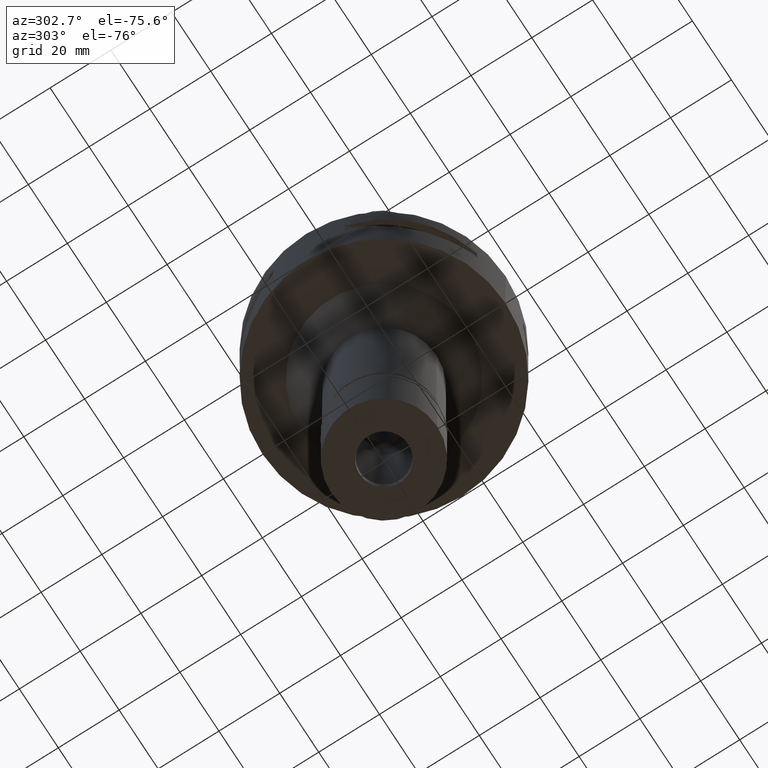
[diagram: clean part render]
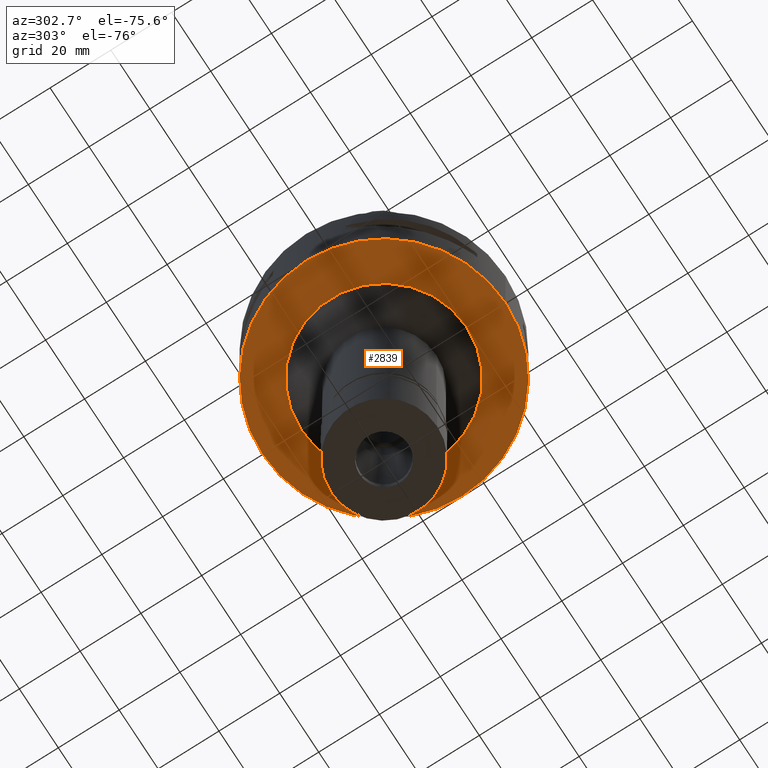
[diagram: same view with one face highlighted and labeled with its STEP entity id]
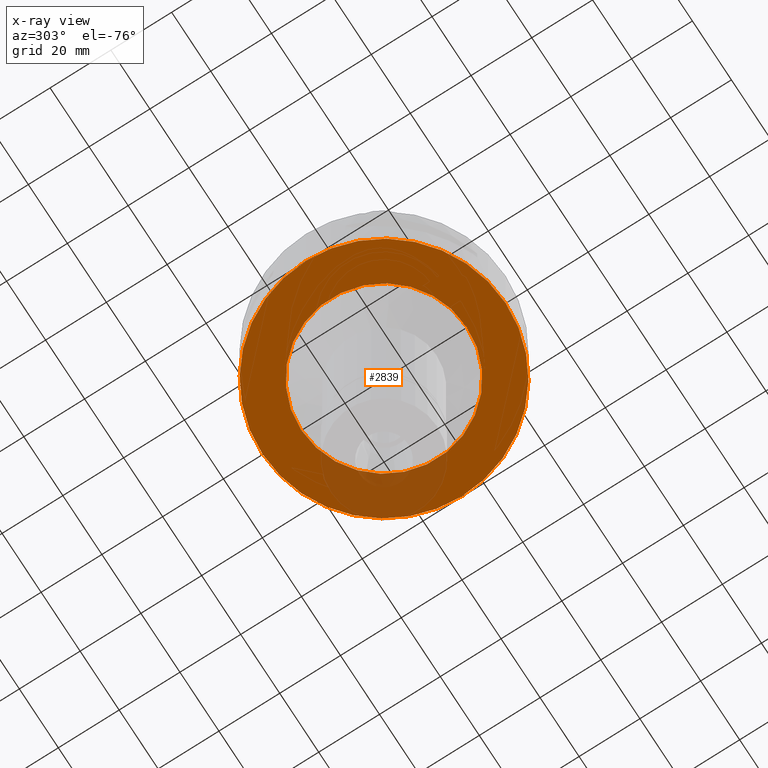
[diagram: x-ray of the same camera — body ghosted, the highlighted face saturated]
A machine part, auxiliary view. The second image highlights one B-rep face of the part: STEP entity #2839.
The next image is the same camera in x-ray: the body ghosted, the highlighted face saturated — about 15% of this face is hidden behind the body in this view.
In plain terms, the highlighted planar face has unit normal (0, 0, -1).
Its self-contained STEP definition (entity closure, byte-faithful):
#42 = VERTEX_POINT ( 'NONE', #1980 ) ;
#104 = ORIENTED_EDGE ( 'NONE', *, *, #1187, .F. ) ;
#209 = AXIS2_PLACEMENT_3D ( 'NONE', #470, #2058, #3308 ) ;
#416 = CARTESIAN_POINT ( 'NONE',  ( 0.0000000000000000000, 0.0000000000000000000, -30.00000000000000000 ) ) ;
#470 = CARTESIAN_POINT ( 'NONE',  ( 0.0000000000000000000, 1.291390049700999962E-14, -30.00000000000000000 ) ) ;
#1017 = ORIENTED_EDGE ( 'NONE', *, *, #4681, .F. ) ;
#1133 = DIRECTION ( 'NONE',  ( 0.0000000000000000000, -1.000000000000000000, 0.0000000000000000000 ) ) ;
#1187 = EDGE_CURVE ( 'NONE', #42, #3127, #3428, .T. ) ;
#1196 = AXIS2_PLACEMENT_3D ( 'NONE', #2261, #2647, #3397 ) ;
#1245 = EDGE_CURVE ( 'NONE', #1522, #3818, #1856, .T. ) ;
#1403 = CARTESIAN_POINT ( 'NONE',  ( 0.0000000000000000000, 1.291390049700999962E-14, -30.00000000000000000 ) ) ;
#1441 = AXIS2_PLACEMENT_3D ( 'NONE', #416, #4758, #1133 ) ;
#1460 = DIRECTION ( 'NONE',  ( 0.0000000000000000000, -1.000000000000000000, 0.0000000000000000000 ) ) ;
#1522 = VERTEX_POINT ( 'NONE', #3485 ) ;
#1771 = AXIS2_PLACEMENT_3D ( 'NONE', #1951, #4724, #3870 ) ;
#1848 = DIRECTION ( 'NONE',  ( 0.0000000000000000000, 0.0000000000000000000, 1.000000000000000000 ) ) ;
#1856 = CIRCLE ( 'NONE', #4756, 40.00000000000000000 ) ;
#1951 = CARTESIAN_POINT ( 'NONE',  ( 0.0000000000000000000, 0.0000000000000000000, -30.00000000000000000 ) ) ;
#1980 = CARTESIAN_POINT ( 'NONE',  ( 0.0000000000000000000, 27.25000000000000000, -30.00000000000000000 ) ) ;
#2058 = DIRECTION ( 'NONE',  ( 0.0000000000000000000, 0.0000000000000000000, 1.000000000000000000 ) ) ;
#2134 = CARTESIAN_POINT ( 'NONE',  ( 0.0000000000000000000, 40.00000000000000000, -30.00000000000000000 ) ) ;
#2261 = CARTESIAN_POINT ( 'NONE',  ( 0.0000000000000000000, 0.0000000000000000000, -30.00000000000000000 ) ) ;
#2647 = DIRECTION ( 'NONE',  ( 0.0000000000000000000, 0.0000000000000000000, -1.000000000000000000 ) ) ;
#2754 = ORIENTED_EDGE ( 'NONE', *, *, #1245, .F. ) ;
#2796 = CARTESIAN_POINT ( 'NONE',  ( 0.0000000000000000000, -27.25000000000000000, -30.00000000000000000 ) ) ;
#2839 = ADVANCED_FACE ( 'NONE', ( #3423, #4129 ), #3348, .T. ) ;
#3101 = CIRCLE ( 'NONE', #209, 40.00000000000000000 ) ;
#3127 = VERTEX_POINT ( 'NONE', #2796 ) ;
#3273 = EDGE_CURVE ( 'NONE', #3818, #1522, #3101, .T. ) ;
#3308 = DIRECTION ( 'NONE',  ( 0.0000000000000000000, 1.000000000000000000, 0.0000000000000000000 ) ) ;
#3348 = PLANE ( 'NONE',  #1196 ) ;
#3397 = DIRECTION ( 'NONE',  ( 0.0000000000000000000, -1.000000000000000000, 0.0000000000000000000 ) ) ;
#3423 = FACE_OUTER_BOUND ( 'NONE', #4171, .T. ) ;
#3428 = CIRCLE ( 'NONE', #1771, 27.25000000000000000 ) ;
#3485 = CARTESIAN_POINT ( 'NONE',  ( 0.0000000000000000000, -40.00000000000000000, -30.00000000000000000 ) ) ;
#3818 = VERTEX_POINT ( 'NONE', #2134 ) ;
#3870 = DIRECTION ( 'NONE',  ( 0.0000000000000000000, 1.000000000000000000, 0.0000000000000000000 ) ) ;
#3973 = ORIENTED_EDGE ( 'NONE', *, *, #3273, .F. ) ;
#4129 = FACE_BOUND ( 'NONE', #4499, .T. ) ;
#4171 = EDGE_LOOP ( 'NONE', ( #3973, #2754 ) ) ;
#4499 = EDGE_LOOP ( 'NONE', ( #104, #1017 ) ) ;
#4681 = EDGE_CURVE ( 'NONE', #3127, #42, #4923, .T. ) ;
#4724 = DIRECTION ( 'NONE',  ( 0.0000000000000000000, 0.0000000000000000000, -1.000000000000000000 ) ) ;
#4756 = AXIS2_PLACEMENT_3D ( 'NONE', #1403, #1848, #1460 ) ;
#4758 = DIRECTION ( 'NONE',  ( 0.0000000000000000000, 0.0000000000000000000, -1.000000000000000000 ) ) ;
#4923 = CIRCLE ( 'NONE', #1441, 27.25000000000000000 ) ;